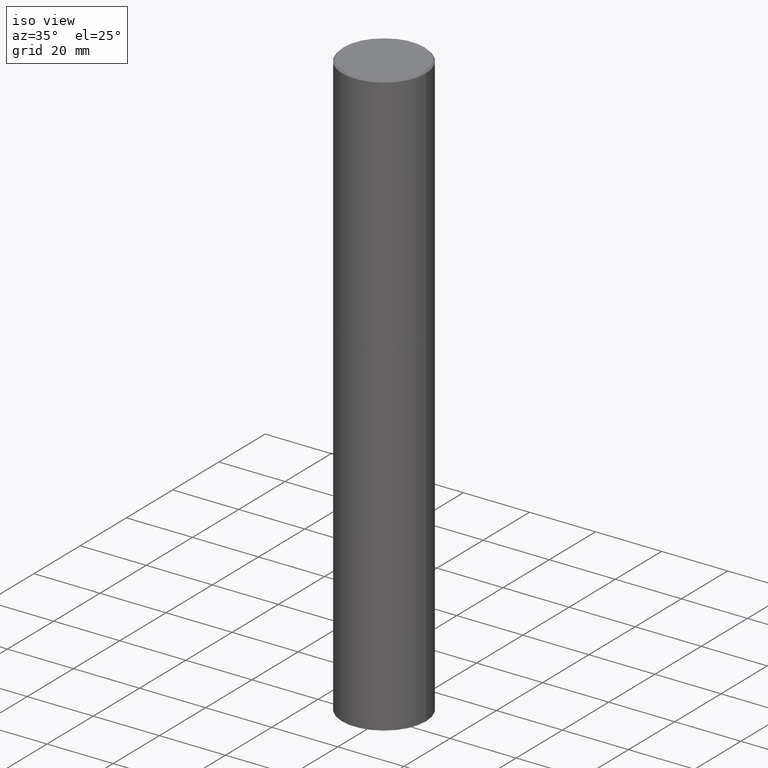
[diagram: clean part render]
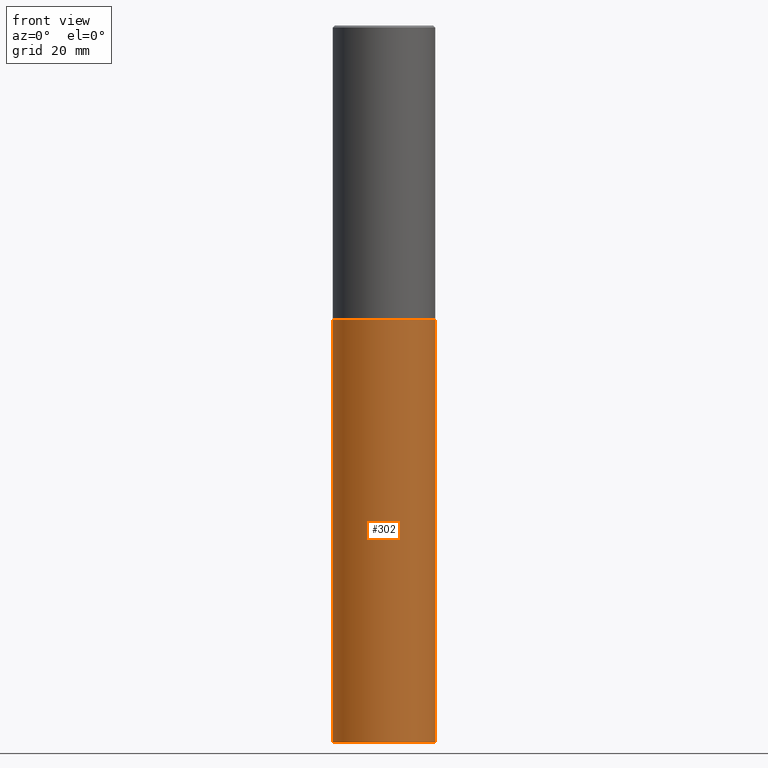
[diagram: tour spotlight — one face highlighted and labeled with its STEP entity id]
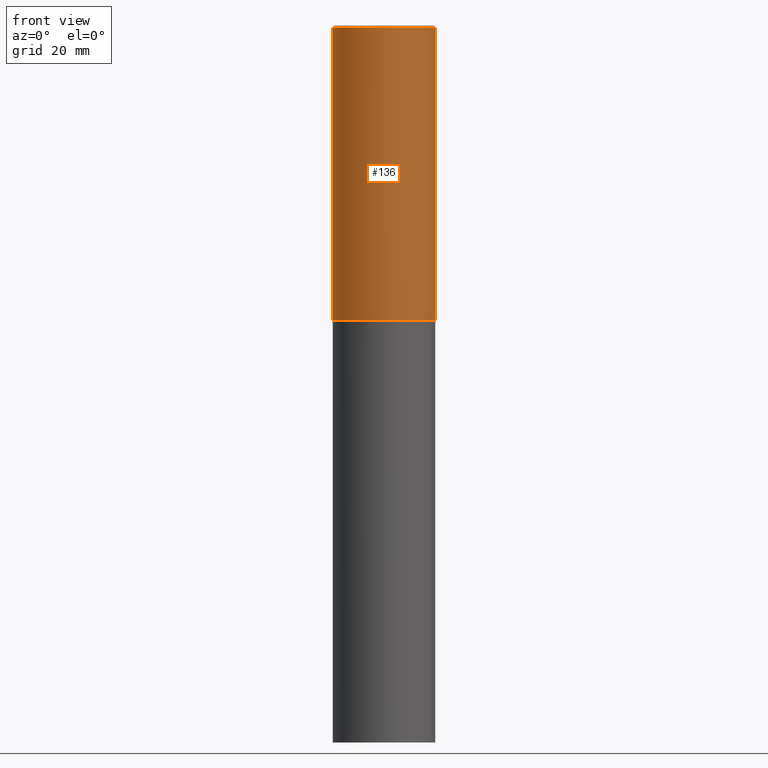
[diagram: tour spotlight — one face highlighted and labeled with its STEP entity id]
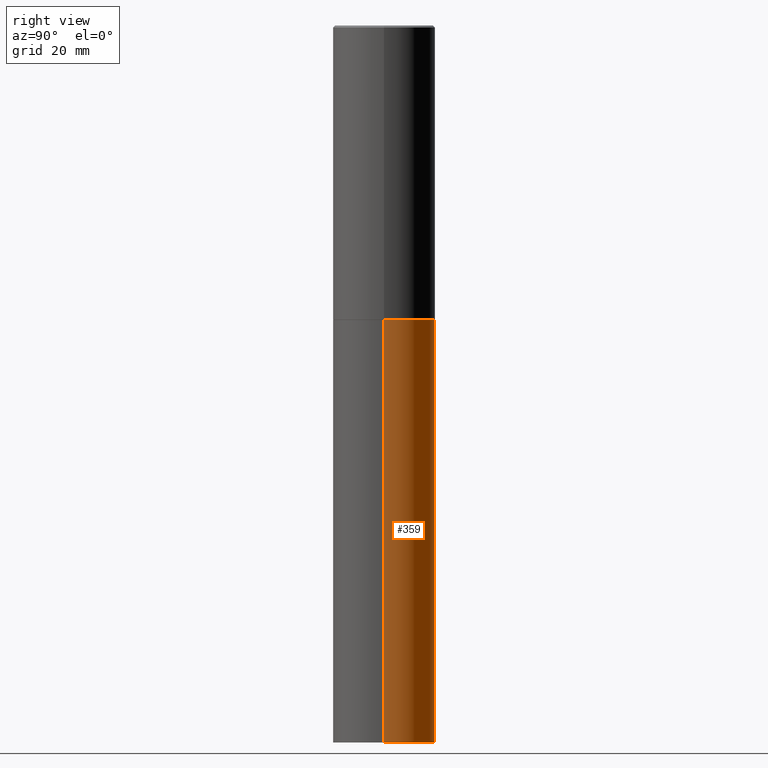
[diagram: tour spotlight — one face highlighted and labeled with its STEP entity id]
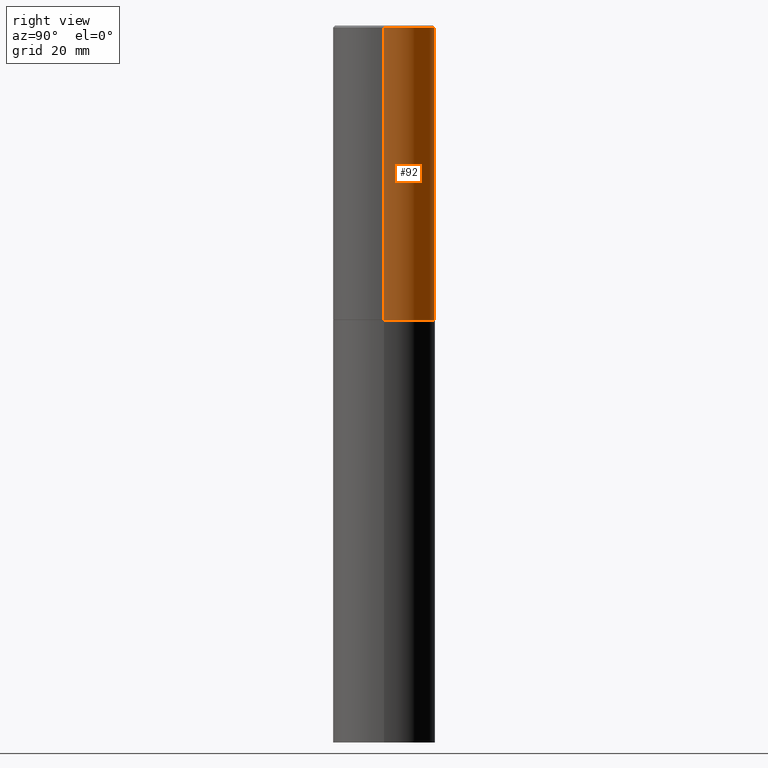
[diagram: tour spotlight — one face highlighted and labeled with its STEP entity id]
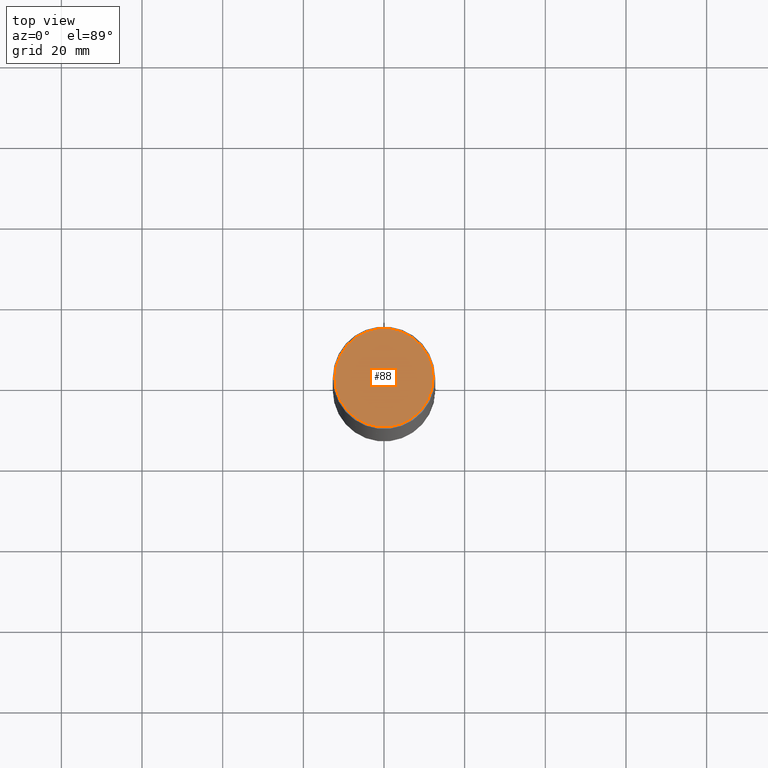
[diagram: tour spotlight — one face highlighted and labeled with its STEP entity id]
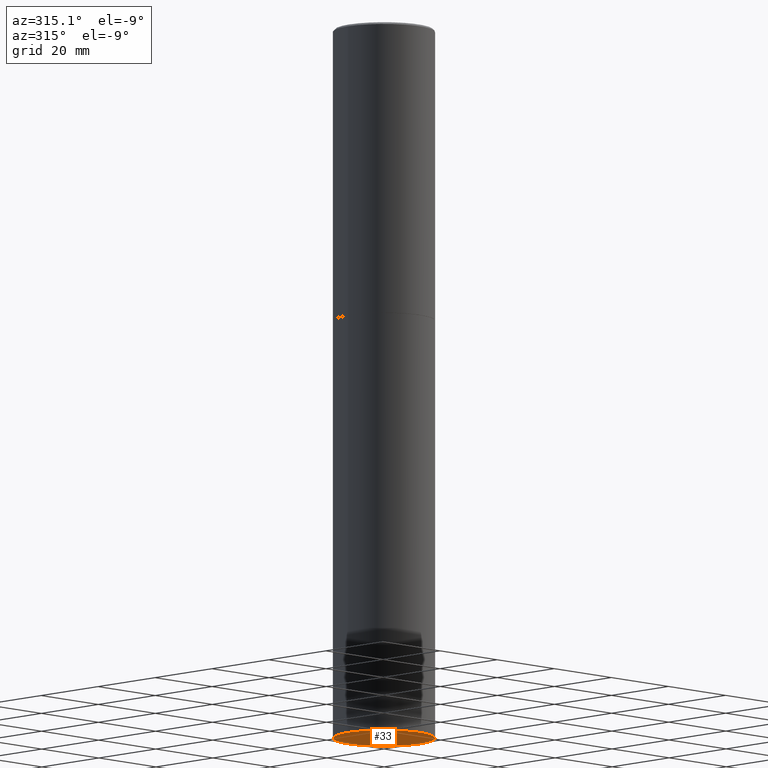
[diagram: tour spotlight — one face highlighted and labeled with its STEP entity id]
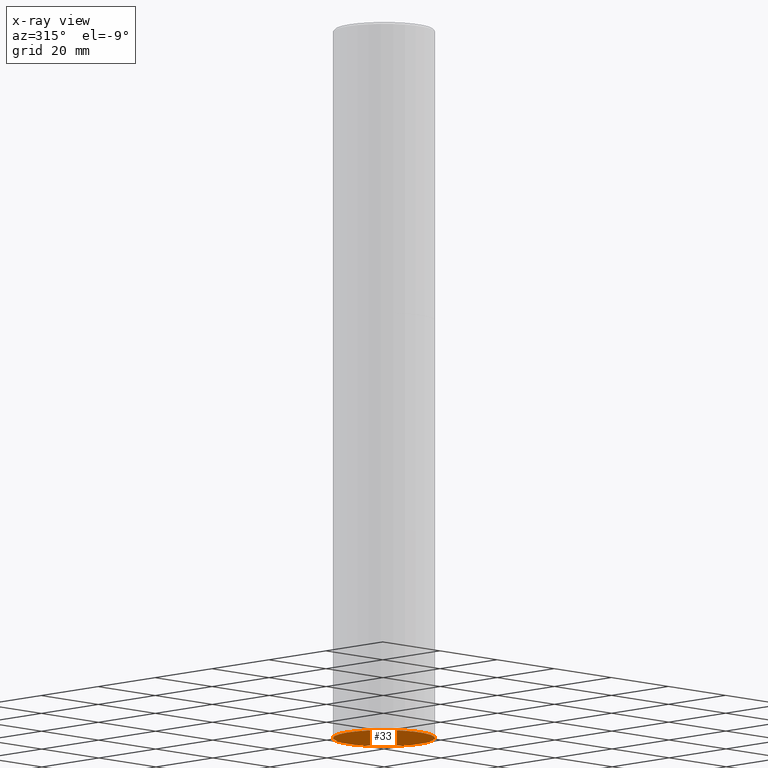
[diagram: x-ray of the same camera — body ghosted, this tour face saturated]
A machine part: a face-by-face anatomy tour. The part has 12 B-rep faces; the first image is the clean iso view, then the 6 largest visible faces are spotlighted one at a time (largest first), each with its STEP entity span.

Face 1 — front view, entity #302. In plain terms, the highlighted cylindrical surface (partial cylindrical patch) has radius 12.7 mm, axis along (-0, 0, 1).
Definition (entity closure, byte-faithful):
#3 = DIRECTION ( 'NONE',  ( -2.445468806185136597E-29, 3.491481338843145583E-15, 1.000000000000000000 ) ) ;
#38 = VECTOR ( 'NONE', #335, 39.37007874015748143 ) ;
#78 = VERTEX_POINT ( 'NONE', #281 ) ;
#79 = CIRCLE ( 'NONE', #224, 0.5000000000000000000 ) ;
#83 = EDGE_CURVE ( 'NONE', #78, #288, #90, .T. ) ;
#85 = CYLINDRICAL_SURFACE ( 'NONE', #243, 0.5000000000000000000 ) ;
#90 = LINE ( 'NONE', #205, #330 ) ;
#93 = DIRECTION ( 'NONE',  ( 1.000000000000000000, -6.982962677686266711E-15, 0.000000000000000000 ) ) ;
#109 = VERTEX_POINT ( 'NONE', #253 ) ;
#113 = LINE ( 'NONE', #116, #38 ) ;
#114 = CARTESIAN_POINT ( 'NONE',  ( 0.5000000000000000000, -1.352949018801717646E-14, -2.875000000000000000 ) ) ;
#116 = CARTESIAN_POINT ( 'NONE',  ( 0.5000000000000000000, -3.491481338843133355E-15, 2.438088387897967896E-29 ) ) ;
#127 = ORIENTED_EDGE ( 'NONE', *, *, #344, .F. ) ;
#129 = AXIS2_PLACEMENT_3D ( 'NONE', #234, #283, #93 ) ;
#143 = CIRCLE ( 'NONE', #129, 0.5000000000000000000 ) ;
#178 = DIRECTION ( 'NONE',  ( -2.445468806185136877E-29, 3.491481338843145188E-15, 1.000000000000000000 ) ) ;
#179 = DIRECTION ( 'NONE',  ( -2.445468806185136597E-29, 3.491481338843145583E-15, 1.000000000000000000 ) ) ;
#180 = ORIENTED_EDGE ( 'NONE', *, *, #83, .F. ) ;
#200 = DIRECTION ( 'NONE',  ( 1.000000000000000000, -6.982962677686266711E-15, 4.876176775795935793E-29 ) ) ;
#205 = CARTESIAN_POINT ( 'NONE',  ( -0.5000000000000000000, 3.552713678800500929E-15, -2.459467545127452891E-29 ) ) ;
#224 = AXIS2_PLACEMENT_3D ( 'NONE', #256, #3, #340 ) ;
#234 = CARTESIAN_POINT ( 'NONE',  ( 7.030722817782267716E-29, -1.003800884917404311E-14, -2.875000000000000000 ) ) ;
#241 = EDGE_LOOP ( 'NONE', ( #180, #295, #252, #127 ) ) ;
#243 = AXIS2_PLACEMENT_3D ( 'NONE', #306, #179, #200 ) ;
#248 = EDGE_CURVE ( 'NONE', #109, #350, #113, .T. ) ;
#252 = ORIENTED_EDGE ( 'NONE', *, *, #248, .T. ) ;
#253 = CARTESIAN_POINT ( 'NONE',  ( 0.5000000000000000000, -2.793185071074515204E-14, -7.000000000000000000 ) ) ;
#256 = CARTESIAN_POINT ( 'NONE',  ( 1.711828164329595394E-28, -2.444036937190201868E-14, -7.000000000000000000 ) ) ;
#281 = CARTESIAN_POINT ( 'NONE',  ( -0.5000000000000000000, -1.368647543173752918E-14, -7.000000000000000000 ) ) ;
#282 = CARTESIAN_POINT ( 'NONE',  ( -0.5000000000000000000, -1.368647543173752918E-14, -2.875000000000000000 ) ) ;
#283 = DIRECTION ( 'NONE',  ( -2.445468806185136597E-29, 3.491481338843145583E-15, 1.000000000000000000 ) ) ;
#288 = VERTEX_POINT ( 'NONE', #282 ) ;
#295 = ORIENTED_EDGE ( 'NONE', *, *, #361, .T. ) ;
#302 = ADVANCED_FACE ( 'NONE', ( #339 ), #85, .T. ) ;
#306 = CARTESIAN_POINT ( 'NONE',  ( 0.000000000000000000, 0.000000000000000000, 0.000000000000000000 ) ) ;
#330 = VECTOR ( 'NONE', #178, 39.37007874015748143 ) ;
#335 = DIRECTION ( 'NONE',  ( -2.445468806185136877E-29, 3.491481338843145188E-15, 1.000000000000000000 ) ) ;
#339 = FACE_OUTER_BOUND ( 'NONE', #241, .T. ) ;
#340 = DIRECTION ( 'NONE',  ( 1.000000000000000000, -6.982962677686270655E-15, 0.000000000000000000 ) ) ;
#344 = EDGE_CURVE ( 'NONE', #288, #350, #143, .T. ) ;
#350 = VERTEX_POINT ( 'NONE', #114 ) ;
#361 = EDGE_CURVE ( 'NONE', #78, #109, #79, .T. ) ;

Face 2 — front view, entity #136. In plain terms, the highlighted cylindrical surface (partial cylindrical patch) has radius 12.7 mm, axis along (-0, 0, 1).
Definition (entity closure, byte-faithful):
#13 = VERTEX_POINT ( 'NONE', #332 ) ;
#16 = ORIENTED_EDGE ( 'NONE', *, *, #259, .F. ) ;
#19 = ORIENTED_EDGE ( 'NONE', *, *, #265, .F. ) ;
#34 = CARTESIAN_POINT ( 'NONE',  ( 0.5000000000000000000, -1.352599870667833503E-14, -2.874000000000000110 ) ) ;
#35 = EDGE_CURVE ( 'NONE', #13, #291, #56, .T. ) ;
#37 = VERTEX_POINT ( 'NONE', #320 ) ;
#41 = EDGE_LOOP ( 'NONE', ( #19, #160, #290, #16 ) ) ;
#45 = VECTOR ( 'NONE', #173, 39.37007874015748143 ) ;
#49 = FACE_OUTER_BOUND ( 'NONE', #41, .T. ) ;
#56 = CIRCLE ( 'NONE', #354, 0.5000000000000000000 ) ;
#59 = DIRECTION ( 'NONE',  ( 1.000000000000000000, -6.982962677686266711E-15, 0.000000000000000000 ) ) ;
#61 = CARTESIAN_POINT ( 'NONE',  ( 4.890937612370297681E-31, -6.982962677686324889E-17, -0.02000000000000009756 ) ) ;
#75 = CARTESIAN_POINT ( 'NONE',  ( 0.000000000000000000, 0.000000000000000000, 0.000000000000000000 ) ) ;
#81 = CARTESIAN_POINT ( 'NONE',  ( -0.4999999999999997224, 3.421651712066268085E-15, -0.02000000000000009756 ) ) ;
#110 = CIRCLE ( 'NONE', #165, 0.4999999999999997224 ) ;
#119 = CARTESIAN_POINT ( 'NONE',  ( -0.4999999999999998335, 3.552713678800499746E-15, -2.459467545127452330E-29 ) ) ;
#130 = DIRECTION ( 'NONE',  ( -2.445468806185136597E-29, 3.491481338843145583E-15, 1.000000000000000000 ) ) ;
#131 = VERTEX_POINT ( 'NONE', #81 ) ;
#136 = ADVANCED_FACE ( 'NONE', ( #49 ), #163, .T. ) ;
#141 = CARTESIAN_POINT ( 'NONE',  ( 0.4999999999999998335, -3.491481338843132566E-15, 2.438088387897967336E-29 ) ) ;
#156 = AXIS2_PLACEMENT_3D ( 'NONE', #75, #366, #296 ) ;
#158 = CARTESIAN_POINT ( 'NONE',  ( 7.028277348976082113E-29, -1.003451736783520168E-14, -2.874000000000000110 ) ) ;
#160 = ORIENTED_EDGE ( 'NONE', *, *, #35, .T. ) ;
#163 = CYLINDRICAL_SURFACE ( 'NONE', #156, 0.4999999999999998335 ) ;
#165 = AXIS2_PLACEMENT_3D ( 'NONE', #61, #304, #59 ) ;
#173 = DIRECTION ( 'NONE',  ( -2.445468806185136877E-29, 3.491481338843145188E-15, 1.000000000000000000 ) ) ;
#177 = DIRECTION ( 'NONE',  ( -2.445468806185136877E-29, 3.491481338843145188E-15, 1.000000000000000000 ) ) ;
#207 = DIRECTION ( 'NONE',  ( 1.000000000000000000, -6.982962677686266711E-15, 0.000000000000000000 ) ) ;
#231 = LINE ( 'NONE', #141, #45 ) ;
#251 = VECTOR ( 'NONE', #177, 39.37007874015748143 ) ;
#255 = EDGE_CURVE ( 'NONE', #291, #37, #231, .T. ) ;
#259 = EDGE_CURVE ( 'NONE', #131, #37, #110, .T. ) ;
#265 = EDGE_CURVE ( 'NONE', #13, #131, #278, .T. ) ;
#278 = LINE ( 'NONE', #119, #251 ) ;
#290 = ORIENTED_EDGE ( 'NONE', *, *, #255, .T. ) ;
#291 = VERTEX_POINT ( 'NONE', #34 ) ;
#296 = DIRECTION ( 'NONE',  ( 1.000000000000000000, -6.982962677686267499E-15, 4.876176775795936353E-29 ) ) ;
#304 = DIRECTION ( 'NONE',  ( -2.445468806185136597E-29, 3.491481338843145583E-15, 1.000000000000000000 ) ) ;
#320 = CARTESIAN_POINT ( 'NONE',  ( 0.4999999999999997224, -3.500078625662627502E-15, -0.02000000000000009756 ) ) ;
#332 = CARTESIAN_POINT ( 'NONE',  ( -0.5000000000000000000, -1.499459818505530375E-15, -2.874000000000000110 ) ) ;
#354 = AXIS2_PLACEMENT_3D ( 'NONE', #158, #130, #207 ) ;
#366 = DIRECTION ( 'NONE',  ( -2.445468806185136597E-29, 3.491481338843145583E-15, 1.000000000000000000 ) ) ;

Face 3 — right view, entity #359. In plain terms, the highlighted cylindrical surface (partial cylindrical patch) has radius 12.7 mm, axis along (-0, 0, 1).
Definition (entity closure, byte-faithful):
#14 = CIRCLE ( 'NONE', #198, 0.5000000000000000000 ) ;
#36 = CARTESIAN_POINT ( 'NONE',  ( 7.030722817782267716E-29, -1.003800884917404311E-14, -2.875000000000000000 ) ) ;
#38 = VECTOR ( 'NONE', #335, 39.37007874015748143 ) ;
#44 = ORIENTED_EDGE ( 'NONE', *, *, #117, .T. ) ;
#50 = EDGE_CURVE ( 'NONE', #350, #288, #14, .T. ) ;
#51 = AXIS2_PLACEMENT_3D ( 'NONE', #221, #300, #133 ) ;
#78 = VERTEX_POINT ( 'NONE', #281 ) ;
#83 = EDGE_CURVE ( 'NONE', #78, #288, #90, .T. ) ;
#90 = LINE ( 'NONE', #205, #330 ) ;
#91 = AXIS2_PLACEMENT_3D ( 'NONE', #140, #118, #258 ) ;
#109 = VERTEX_POINT ( 'NONE', #253 ) ;
#113 = LINE ( 'NONE', #116, #38 ) ;
#114 = CARTESIAN_POINT ( 'NONE',  ( 0.5000000000000000000, -1.352949018801717646E-14, -2.875000000000000000 ) ) ;
#116 = CARTESIAN_POINT ( 'NONE',  ( 0.5000000000000000000, -3.491481338843133355E-15, 2.438088387897967896E-29 ) ) ;
#117 = EDGE_CURVE ( 'NONE', #109, #78, #212, .T. ) ;
#118 = DIRECTION ( 'NONE',  ( -2.445468806185136597E-29, 3.491481338843145583E-15, 1.000000000000000000 ) ) ;
#123 = DIRECTION ( 'NONE',  ( 1.000000000000000000, -6.982962677686266711E-15, 0.000000000000000000 ) ) ;
#133 = DIRECTION ( 'NONE',  ( 1.000000000000000000, -6.982962677686270655E-15, 0.000000000000000000 ) ) ;
#140 = CARTESIAN_POINT ( 'NONE',  ( 0.000000000000000000, 0.000000000000000000, 0.000000000000000000 ) ) ;
#147 = DIRECTION ( 'NONE',  ( -2.445468806185136597E-29, 3.491481338843145583E-15, 1.000000000000000000 ) ) ;
#153 = ORIENTED_EDGE ( 'NONE', *, *, #83, .T. ) ;
#168 = ORIENTED_EDGE ( 'NONE', *, *, #50, .F. ) ;
#178 = DIRECTION ( 'NONE',  ( -2.445468806185136877E-29, 3.491481338843145188E-15, 1.000000000000000000 ) ) ;
#191 = EDGE_LOOP ( 'NONE', ( #44, #153, #168, #314 ) ) ;
#198 = AXIS2_PLACEMENT_3D ( 'NONE', #36, #147, #123 ) ;
#205 = CARTESIAN_POINT ( 'NONE',  ( -0.5000000000000000000, 3.552713678800500929E-15, -2.459467545127452891E-29 ) ) ;
#212 = CIRCLE ( 'NONE', #51, 0.5000000000000000000 ) ;
#221 = CARTESIAN_POINT ( 'NONE',  ( 1.711828164329595394E-28, -2.444036937190201868E-14, -7.000000000000000000 ) ) ;
#230 = FACE_OUTER_BOUND ( 'NONE', #191, .T. ) ;
#248 = EDGE_CURVE ( 'NONE', #109, #350, #113, .T. ) ;
#253 = CARTESIAN_POINT ( 'NONE',  ( 0.5000000000000000000, -2.793185071074515204E-14, -7.000000000000000000 ) ) ;
#258 = DIRECTION ( 'NONE',  ( 1.000000000000000000, -6.982962677686266711E-15, 4.876176775795935793E-29 ) ) ;
#280 = CYLINDRICAL_SURFACE ( 'NONE', #91, 0.5000000000000000000 ) ;
#281 = CARTESIAN_POINT ( 'NONE',  ( -0.5000000000000000000, -1.368647543173752918E-14, -7.000000000000000000 ) ) ;
#282 = CARTESIAN_POINT ( 'NONE',  ( -0.5000000000000000000, -1.368647543173752918E-14, -2.875000000000000000 ) ) ;
#288 = VERTEX_POINT ( 'NONE', #282 ) ;
#300 = DIRECTION ( 'NONE',  ( -2.445468806185136597E-29, 3.491481338843145583E-15, 1.000000000000000000 ) ) ;
#314 = ORIENTED_EDGE ( 'NONE', *, *, #248, .F. ) ;
#330 = VECTOR ( 'NONE', #178, 39.37007874015748143 ) ;
#335 = DIRECTION ( 'NONE',  ( -2.445468806185136877E-29, 3.491481338843145188E-15, 1.000000000000000000 ) ) ;
#350 = VERTEX_POINT ( 'NONE', #114 ) ;
#359 = ADVANCED_FACE ( 'NONE', ( #230 ), #280, .T. ) ;

Face 4 — right view, entity #92. In plain terms, the highlighted cylindrical surface (partial cylindrical patch) has radius 12.7 mm, axis along (-0, 0, 1).
Definition (entity closure, byte-faithful):
#7 = FACE_OUTER_BOUND ( 'NONE', #322, .T. ) ;
#13 = VERTEX_POINT ( 'NONE', #332 ) ;
#23 = ORIENTED_EDGE ( 'NONE', *, *, #167, .T. ) ;
#26 = CARTESIAN_POINT ( 'NONE',  ( 7.028277348976082113E-29, -1.003451736783520168E-14, -2.874000000000000110 ) ) ;
#34 = CARTESIAN_POINT ( 'NONE',  ( 0.5000000000000000000, -1.352599870667833503E-14, -2.874000000000000110 ) ) ;
#37 = VERTEX_POINT ( 'NONE', #320 ) ;
#45 = VECTOR ( 'NONE', #173, 39.37007874015748143 ) ;
#52 = DIRECTION ( 'NONE',  ( -2.445468806185136597E-29, 3.491481338843145583E-15, 1.000000000000000000 ) ) ;
#81 = CARTESIAN_POINT ( 'NONE',  ( -0.4999999999999997224, 3.421651712066268085E-15, -0.02000000000000009756 ) ) ;
#92 = ADVANCED_FACE ( 'NONE', ( #7 ), #122, .T. ) ;
#100 = ORIENTED_EDGE ( 'NONE', *, *, #265, .T. ) ;
#107 = CARTESIAN_POINT ( 'NONE',  ( 4.890937612370297681E-31, -6.982962677686324889E-17, -0.02000000000000009756 ) ) ;
#119 = CARTESIAN_POINT ( 'NONE',  ( -0.4999999999999998335, 3.552713678800499746E-15, -2.459467545127452330E-29 ) ) ;
#122 = CYLINDRICAL_SURFACE ( 'NONE', #164, 0.4999999999999998335 ) ;
#131 = VERTEX_POINT ( 'NONE', #81 ) ;
#141 = CARTESIAN_POINT ( 'NONE',  ( 0.4999999999999998335, -3.491481338843132566E-15, 2.438088387897967336E-29 ) ) ;
#164 = AXIS2_PLACEMENT_3D ( 'NONE', #345, #195, #223 ) ;
#167 = EDGE_CURVE ( 'NONE', #291, #13, #303, .T. ) ;
#173 = DIRECTION ( 'NONE',  ( -2.445468806185136877E-29, 3.491481338843145188E-15, 1.000000000000000000 ) ) ;
#177 = DIRECTION ( 'NONE',  ( -2.445468806185136877E-29, 3.491481338843145188E-15, 1.000000000000000000 ) ) ;
#195 = DIRECTION ( 'NONE',  ( -2.445468806185136597E-29, 3.491481338843145583E-15, 1.000000000000000000 ) ) ;
#220 = AXIS2_PLACEMENT_3D ( 'NONE', #107, #327, #245 ) ;
#223 = DIRECTION ( 'NONE',  ( 1.000000000000000000, -6.982962677686267499E-15, 4.876176775795936353E-29 ) ) ;
#231 = LINE ( 'NONE', #141, #45 ) ;
#232 = EDGE_CURVE ( 'NONE', #37, #131, #292, .T. ) ;
#245 = DIRECTION ( 'NONE',  ( 1.000000000000000000, -6.982962677686266711E-15, 0.000000000000000000 ) ) ;
#251 = VECTOR ( 'NONE', #177, 39.37007874015748143 ) ;
#255 = EDGE_CURVE ( 'NONE', #291, #37, #231, .T. ) ;
#265 = EDGE_CURVE ( 'NONE', #13, #131, #278, .T. ) ;
#268 = AXIS2_PLACEMENT_3D ( 'NONE', #26, #52, #334 ) ;
#278 = LINE ( 'NONE', #119, #251 ) ;
#291 = VERTEX_POINT ( 'NONE', #34 ) ;
#292 = CIRCLE ( 'NONE', #220, 0.4999999999999997224 ) ;
#303 = CIRCLE ( 'NONE', #268, 0.5000000000000000000 ) ;
#320 = CARTESIAN_POINT ( 'NONE',  ( 0.4999999999999997224, -3.500078625662627502E-15, -0.02000000000000009756 ) ) ;
#322 = EDGE_LOOP ( 'NONE', ( #23, #100, #360, #328 ) ) ;
#327 = DIRECTION ( 'NONE',  ( -2.445468806185136597E-29, 3.491481338843145583E-15, 1.000000000000000000 ) ) ;
#328 = ORIENTED_EDGE ( 'NONE', *, *, #255, .F. ) ;
#332 = CARTESIAN_POINT ( 'NONE',  ( -0.5000000000000000000, -1.499459818505530375E-15, -2.874000000000000110 ) ) ;
#334 = DIRECTION ( 'NONE',  ( 1.000000000000000000, -6.982962677686266711E-15, 0.000000000000000000 ) ) ;
#345 = CARTESIAN_POINT ( 'NONE',  ( 0.000000000000000000, 0.000000000000000000, 0.000000000000000000 ) ) ;
#360 = ORIENTED_EDGE ( 'NONE', *, *, #232, .F. ) ;

Face 5 — top view, entity #88. In plain terms, the highlighted planar face has unit normal (0, -0, -1).
Definition (entity closure, byte-faithful):
#21 = AXIS2_PLACEMENT_3D ( 'NONE', #206, #65, #148 ) ;
#30 = CARTESIAN_POINT ( 'NONE',  ( 0.4799999999999996492, -3.396558832296480127E-15, 2.134256245052565135E-17 ) ) ;
#55 = DIRECTION ( 'NONE',  ( 1.000000000000000000, -6.982962677686267499E-15, 4.876431871984417079E-29 ) ) ;
#65 = DIRECTION ( 'NONE',  ( 2.438088387897960049E-29, -3.491481338843145188E-15, -1.000000000000000000 ) ) ;
#82 = DIRECTION ( 'NONE',  ( -2.445468806185136597E-29, 3.491481338843145583E-15, 1.000000000000000000 ) ) ;
#84 = CIRCLE ( 'NONE', #364, 0.4799999999999996492 ) ;
#87 = DIRECTION ( 'NONE',  ( 1.000000000000000000, -6.982962677686267499E-15, 4.876431871984417079E-29 ) ) ;
#88 = ADVANCED_FACE ( 'NONE', ( #120 ), #201, .F. ) ;
#120 = FACE_OUTER_BOUND ( 'NONE', #194, .T. ) ;
#148 = DIRECTION ( 'NONE',  ( -1.000000000000000000, 6.982962677686265922E-15, -4.876176775795935793E-29 ) ) ;
#166 = CARTESIAN_POINT ( 'NONE',  ( -5.219257071676098903E-46, 7.451715851902235727E-32, 2.134256245050205639E-17 ) ) ;
#186 = EDGE_CURVE ( 'NONE', #271, #237, #229, .T. ) ;
#194 = EDGE_LOOP ( 'NONE', ( #326, #227 ) ) ;
#201 = PLANE ( 'NONE',  #21 ) ;
#204 = AXIS2_PLACEMENT_3D ( 'NONE', #166, #301, #55 ) ;
#206 = CARTESIAN_POINT ( 'NONE',  ( 3.351822085289405181E-15, 0.4799999999999996492, -1.665239761419457638E-15 ) ) ;
#227 = ORIENTED_EDGE ( 'NONE', *, *, #186, .T. ) ;
#228 = CARTESIAN_POINT ( 'NONE',  ( -5.219257071676098903E-46, 7.451715851902235727E-32, 2.134256245050205639E-17 ) ) ;
#229 = CIRCLE ( 'NONE', #204, 0.4799999999999996492 ) ;
#237 = VERTEX_POINT ( 'NONE', #272 ) ;
#271 = VERTEX_POINT ( 'NONE', #30 ) ;
#272 = CARTESIAN_POINT ( 'NONE',  ( -0.4799999999999996492, 3.386736898677836830E-15, 2.134256245047849534E-17 ) ) ;
#301 = DIRECTION ( 'NONE',  ( -2.445468806185136597E-29, 3.491481338843145583E-15, 1.000000000000000000 ) ) ;
#323 = EDGE_CURVE ( 'NONE', #237, #271, #84, .T. ) ;
#326 = ORIENTED_EDGE ( 'NONE', *, *, #323, .T. ) ;
#364 = AXIS2_PLACEMENT_3D ( 'NONE', #228, #82, #87 ) ;

Face 6 — auxiliary view, entity #33. An x-ray twin of the same camera follows (body ghosted, this face saturated) — the face is partly hidden behind the body. In plain terms, the highlighted planar face has unit normal (0, -0, -1).
Definition (entity closure, byte-faithful):
#3 = DIRECTION ( 'NONE',  ( -2.445468806185136597E-29, 3.491481338843145583E-15, 1.000000000000000000 ) ) ;
#9 = CARTESIAN_POINT ( 'NONE',  ( 3.491481338843304144E-15, 0.4999999999999755196, -7.000000000000001776 ) ) ;
#33 = ADVANCED_FACE ( 'NONE', ( #269 ), #196, .T. ) ;
#51 = AXIS2_PLACEMENT_3D ( 'NONE', #221, #300, #133 ) ;
#78 = VERTEX_POINT ( 'NONE', #281 ) ;
#79 = CIRCLE ( 'NONE', #224, 0.5000000000000000000 ) ;
#97 = EDGE_LOOP ( 'NONE', ( #215, #267 ) ) ;
#109 = VERTEX_POINT ( 'NONE', #253 ) ;
#117 = EDGE_CURVE ( 'NONE', #109, #78, #212, .T. ) ;
#133 = DIRECTION ( 'NONE',  ( 1.000000000000000000, -6.982962677686270655E-15, 0.000000000000000000 ) ) ;
#196 = PLANE ( 'NONE',  #316 ) ;
#212 = CIRCLE ( 'NONE', #51, 0.5000000000000000000 ) ;
#215 = ORIENTED_EDGE ( 'NONE', *, *, #117, .F. ) ;
#221 = CARTESIAN_POINT ( 'NONE',  ( 1.711828164329595394E-28, -2.444036937190201868E-14, -7.000000000000000000 ) ) ;
#224 = AXIS2_PLACEMENT_3D ( 'NONE', #256, #3, #340 ) ;
#236 = DIRECTION ( 'NONE',  ( 2.438088387897960049E-29, -3.491481338843145188E-15, -1.000000000000000000 ) ) ;
#253 = CARTESIAN_POINT ( 'NONE',  ( 0.5000000000000000000, -2.793185071074515204E-14, -7.000000000000000000 ) ) ;
#256 = CARTESIAN_POINT ( 'NONE',  ( 1.711828164329595394E-28, -2.444036937190201868E-14, -7.000000000000000000 ) ) ;
#267 = ORIENTED_EDGE ( 'NONE', *, *, #361, .F. ) ;
#269 = FACE_OUTER_BOUND ( 'NONE', #97, .T. ) ;
#281 = CARTESIAN_POINT ( 'NONE',  ( -0.5000000000000000000, -1.368647543173752918E-14, -7.000000000000000000 ) ) ;
#300 = DIRECTION ( 'NONE',  ( -2.445468806185136597E-29, 3.491481338843145583E-15, 1.000000000000000000 ) ) ;
#316 = AXIS2_PLACEMENT_3D ( 'NONE', #9, #236, #342 ) ;
#340 = DIRECTION ( 'NONE',  ( 1.000000000000000000, -6.982962677686270655E-15, 0.000000000000000000 ) ) ;
#342 = DIRECTION ( 'NONE',  ( -1.000000000000000000, 6.982962677686265922E-15, -4.876176775795935793E-29 ) ) ;
#361 = EDGE_CURVE ( 'NONE', #78, #109, #79, .T. ) ;